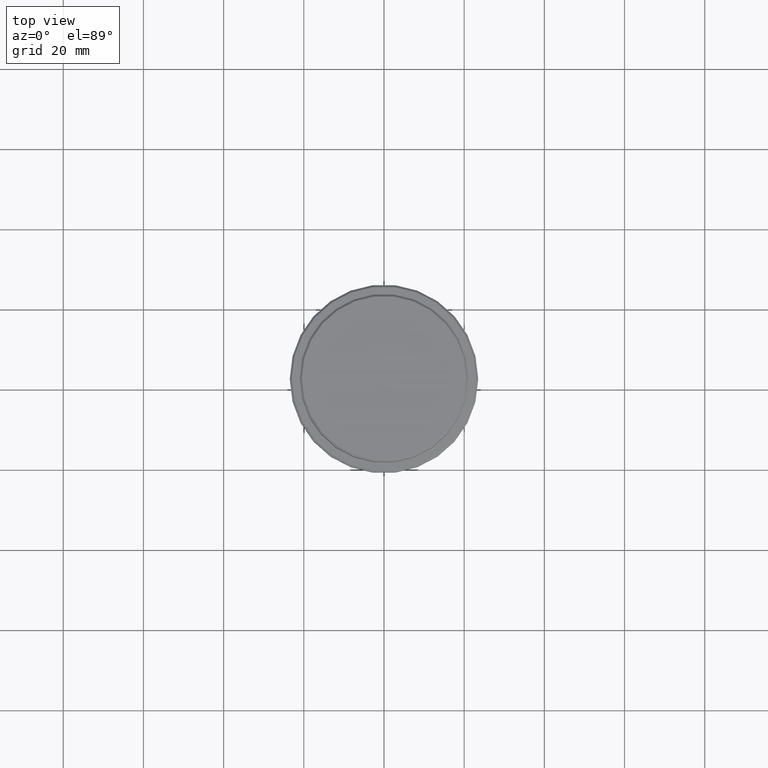
[diagram: clean part render]
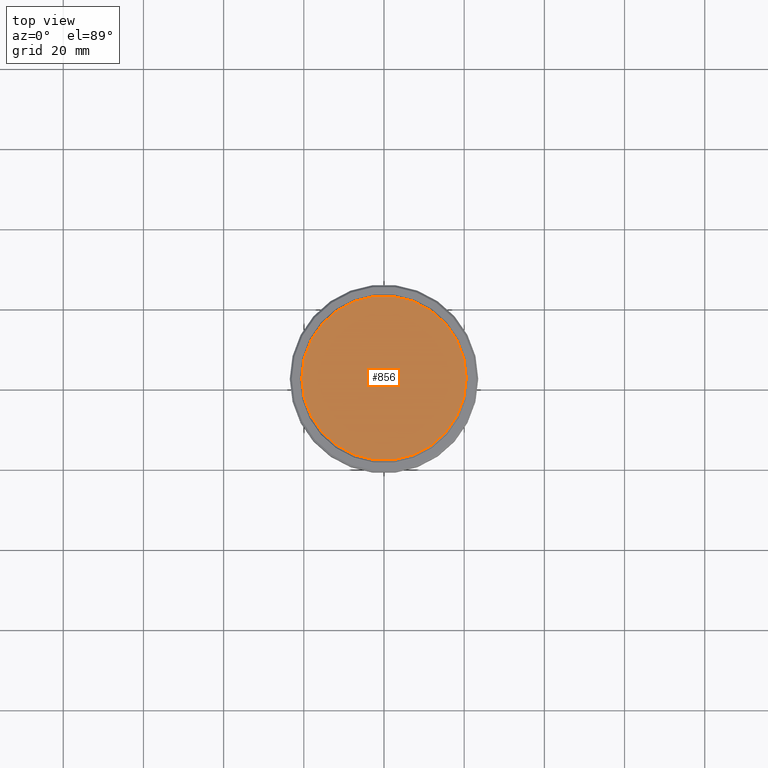
[diagram: same view with one face highlighted and labeled with its STEP entity id]
A machine part, top view. The second image highlights one B-rep face of the part: STEP entity #856.
In plain terms, the highlighted planar face has unit normal (0, -0, 1).
Its self-contained STEP definition (entity closure, byte-faithful):
#84 = EDGE_CURVE ( 'NONE', #888, #204, #142, .T. ) ;
#105 = CARTESIAN_POINT ( 'NONE',  ( 0.000000000000000000, 0.000000000000000000, 0.000000000000000000 ) ) ;
#142 = CIRCLE ( 'NONE', #166, 20.49999999999998934 ) ;
#166 = AXIS2_PLACEMENT_3D ( 'NONE', #105, #206, #633 ) ;
#172 = PLANE ( 'NONE',  #937 ) ;
#204 = VERTEX_POINT ( 'NONE', #412 ) ;
#206 = DIRECTION ( 'NONE',  ( -0.000000000000000000, -0.000000000000000000, 1.000000000000000000 ) ) ;
#350 = ORIENTED_EDGE ( 'NONE', *, *, #84, .T. ) ;
#407 = CARTESIAN_POINT ( 'NONE',  ( 0.000000000000000000, 0.000000000000000000, 0.000000000000000000 ) ) ;
#412 = CARTESIAN_POINT ( 'NONE',  ( -20.49999999999998934, 0.000000000000000000, 0.000000000000000000 ) ) ;
#550 = EDGE_CURVE ( 'NONE', #204, #888, #1225, .T. ) ;
#623 = CARTESIAN_POINT ( 'NONE',  ( 20.49999999999998934, 2.541142108230757480E-15, 0.000000000000000000 ) ) ;
#633 = DIRECTION ( 'NONE',  ( 1.000000000000000000, 0.000000000000000000, 0.000000000000000000 ) ) ;
#679 = DIRECTION ( 'NONE',  ( 1.000000000000000000, 0.000000000000000000, 0.000000000000000000 ) ) ;
#737 = ORIENTED_EDGE ( 'NONE', *, *, #550, .T. ) ;
#743 = DIRECTION ( 'NONE',  ( 0.000000000000000000, -0.000000000000000000, 1.000000000000000000 ) ) ;
#856 = ADVANCED_FACE ( 'NONE', ( #1370 ), #172, .T. ) ;
#888 = VERTEX_POINT ( 'NONE', #623 ) ;
#931 = EDGE_LOOP ( 'NONE', ( #737, #350 ) ) ;
#937 = AXIS2_PLACEMENT_3D ( 'NONE', #407, #743, #952 ) ;
#952 = DIRECTION ( 'NONE',  ( 1.000000000000000000, 0.000000000000000000, 0.000000000000000000 ) ) ;
#1093 = CARTESIAN_POINT ( 'NONE',  ( 0.000000000000000000, 0.000000000000000000, 0.000000000000000000 ) ) ;
#1208 = DIRECTION ( 'NONE',  ( -0.000000000000000000, -0.000000000000000000, 1.000000000000000000 ) ) ;
#1225 = CIRCLE ( 'NONE', #1247, 20.49999999999998934 ) ;
#1247 = AXIS2_PLACEMENT_3D ( 'NONE', #1093, #1208, #679 ) ;
#1370 = FACE_OUTER_BOUND ( 'NONE', #931, .T. ) ;